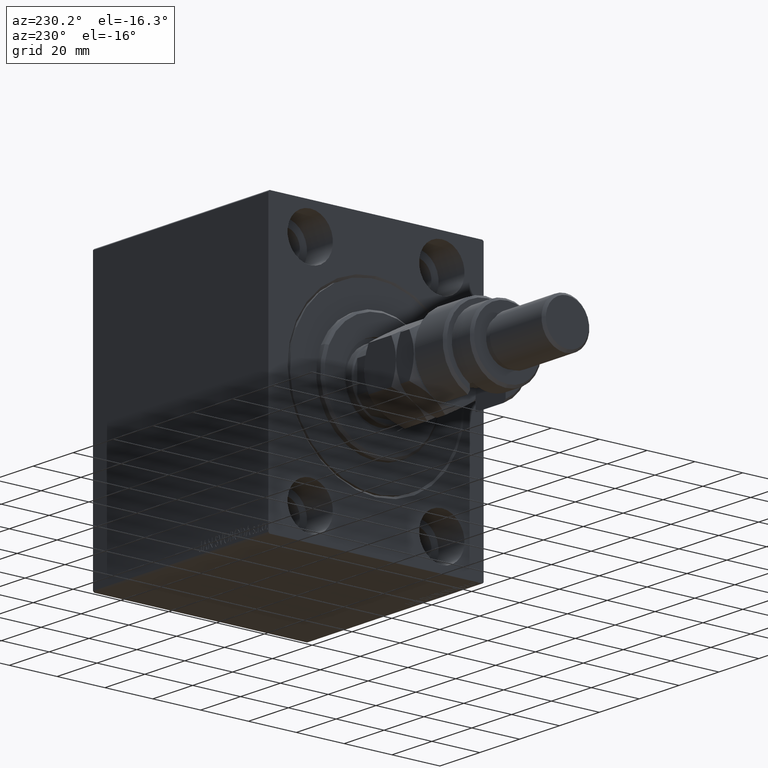
[diagram: clean part render]
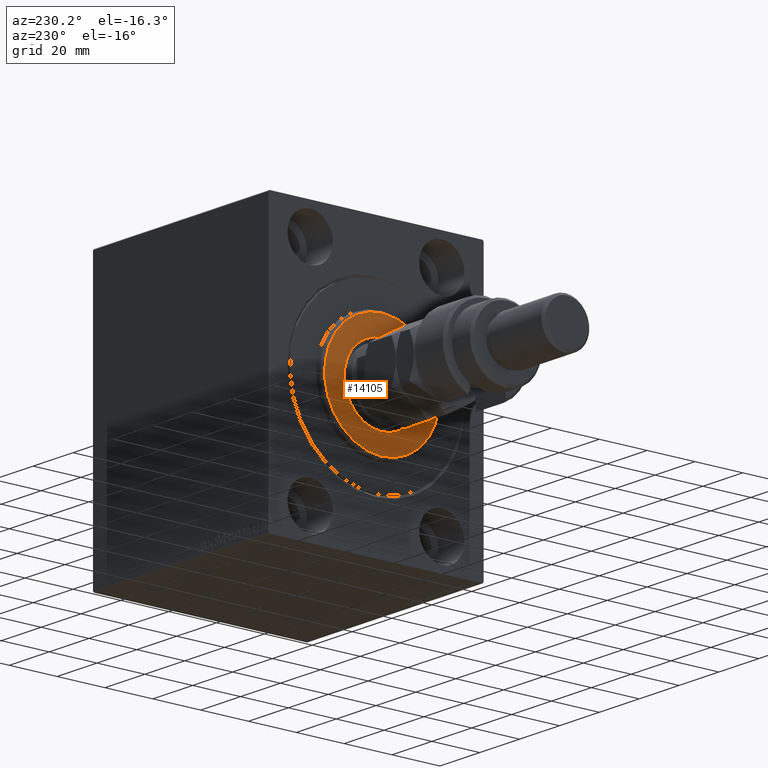
[diagram: same view with one face highlighted and labeled with its STEP entity id]
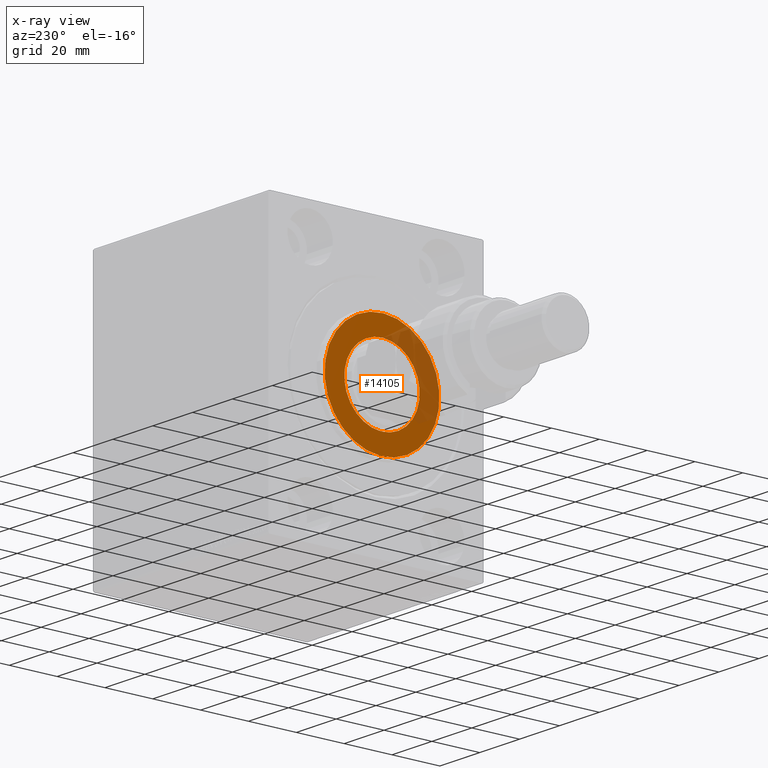
[diagram: x-ray of the same camera — body ghosted, the highlighted face saturated]
A machine part, auxiliary view. The second image highlights one B-rep face of the part: STEP entity #14105.
The next image is the same camera in x-ray: the body ghosted, the highlighted face saturated — about 28% of this face is hidden behind the body in this view.
In plain terms, the highlighted planar face has unit normal (-1, 0, 0).
Its self-contained STEP definition (entity closure, byte-faithful):
#365 = EDGE_CURVE ( 'NONE', #19144, #36520, #23162, .T. ) ;
#672 = EDGE_CURVE ( 'NONE', #36520, #19144, #18675, .T. ) ;
#802 = ORIENTED_EDGE ( 'NONE', *, *, #365, .T. ) ;
#2049 = CARTESIAN_POINT ( 'NONE',  ( 3.000000000000000000, 0.000000000000000000, 0.000000000000000000 ) ) ;
#3502 = DIRECTION ( 'NONE',  ( 0.000000000000000000, 0.000000000000000000, -1.000000000000000000 ) ) ;
#5316 = DIRECTION ( 'NONE',  ( -1.000000000000000000, 0.000000000000000000, -0.000000000000000000 ) ) ;
#5460 = CARTESIAN_POINT ( 'NONE',  ( 3.000000000000000000, 0.000000000000000000, 24.00000000000003553 ) ) ;
#5601 = DIRECTION ( 'NONE',  ( 0.000000000000000000, 0.000000000000000000, -1.000000000000000000 ) ) ;
#7362 = ORIENTED_EDGE ( 'NONE', *, *, #672, .T. ) ;
#7516 = CARTESIAN_POINT ( 'NONE',  ( 3.000000000000000000, 0.000000000000000000, 0.000000000000000000 ) ) ;
#10812 = DIRECTION ( 'NONE',  ( -1.000000000000000000, 0.000000000000000000, -0.000000000000000000 ) ) ;
#12801 = ORIENTED_EDGE ( 'NONE', *, *, #31355, .T. ) ;
#14105 = ADVANCED_FACE ( 'NONE', ( #14713, #28412 ), #29112, .T. ) ;
#14713 = FACE_OUTER_BOUND ( 'NONE', #31357, .T. ) ;
#18266 = DIRECTION ( 'NONE',  ( 1.000000000000000000, -0.000000000000000000, 0.000000000000000000 ) ) ;
#18675 = CIRCLE ( 'NONE', #35986, 24.00000000000003553 ) ;
#19144 = VERTEX_POINT ( 'NONE', #5460 ) ;
#19174 = CIRCLE ( 'NONE', #22211, 15.75000000000000000 ) ;
#19719 = DIRECTION ( 'NONE',  ( 0.000000000000000000, 0.000000000000000000, -1.000000000000000000 ) ) ;
#20781 = CIRCLE ( 'NONE', #40316, 15.75000000000000000 ) ;
#22211 = AXIS2_PLACEMENT_3D ( 'NONE', #37610, #5316, #19719 ) ;
#23162 = CIRCLE ( 'NONE', #25416, 24.00000000000003553 ) ;
#23458 = CARTESIAN_POINT ( 'NONE',  ( 3.000000000000000000, 0.000000000000000000, 15.75000000000000000 ) ) ;
#24817 = CARTESIAN_POINT ( 'NONE',  ( 3.000000000000000000, 0.000000000000000000, 0.000000000000000000 ) ) ;
#25416 = AXIS2_PLACEMENT_3D ( 'NONE', #2049, #37887, #5601 ) ;
#25640 = EDGE_CURVE ( 'NONE', #34476, #27326, #19174, .T. ) ;
#27326 = VERTEX_POINT ( 'NONE', #23458 ) ;
#27804 = EDGE_LOOP ( 'NONE', ( #12801, #30692 ) ) ;
#28412 = FACE_BOUND ( 'NONE', #27804, .T. ) ;
#29112 = PLANE ( 'NONE',  #41512 ) ;
#30692 = ORIENTED_EDGE ( 'NONE', *, *, #25640, .T. ) ;
#31355 = EDGE_CURVE ( 'NONE', #27326, #34476, #20781, .T. ) ;
#31357 = EDGE_LOOP ( 'NONE', ( #802, #7362 ) ) ;
#34476 = VERTEX_POINT ( 'NONE', #39451 ) ;
#35986 = AXIS2_PLACEMENT_3D ( 'NONE', #24817, #45317, #46022 ) ;
#36520 = VERTEX_POINT ( 'NONE', #39941 ) ;
#37610 = CARTESIAN_POINT ( 'NONE',  ( 3.000000000000000000, 0.000000000000000000, 0.000000000000000000 ) ) ;
#37887 = DIRECTION ( 'NONE',  ( 1.000000000000000000, -0.000000000000000000, 0.000000000000000000 ) ) ;
#39451 = CARTESIAN_POINT ( 'NONE',  ( 3.000000000000000000, 1.928818708657080950E-15, -15.75000000000000000 ) ) ;
#39941 = CARTESIAN_POINT ( 'NONE',  ( 3.000000000000000000, 3.000384657911017441E-15, -24.00000000000003553 ) ) ;
#40316 = AXIS2_PLACEMENT_3D ( 'NONE', #7516, #10812, #3502 ) ;
#41512 = AXIS2_PLACEMENT_3D ( 'NONE', #42786, #18266, #43478 ) ;
#42786 = CARTESIAN_POINT ( 'NONE',  ( 3.000000000000000000, 0.000000000000000000, 0.000000000000000000 ) ) ;
#43478 = DIRECTION ( 'NONE',  ( 0.000000000000000000, 0.000000000000000000, -1.000000000000000000 ) ) ;
#45317 = DIRECTION ( 'NONE',  ( 1.000000000000000000, -0.000000000000000000, 0.000000000000000000 ) ) ;
#46022 = DIRECTION ( 'NONE',  ( 0.000000000000000000, 0.000000000000000000, -1.000000000000000000 ) ) ;